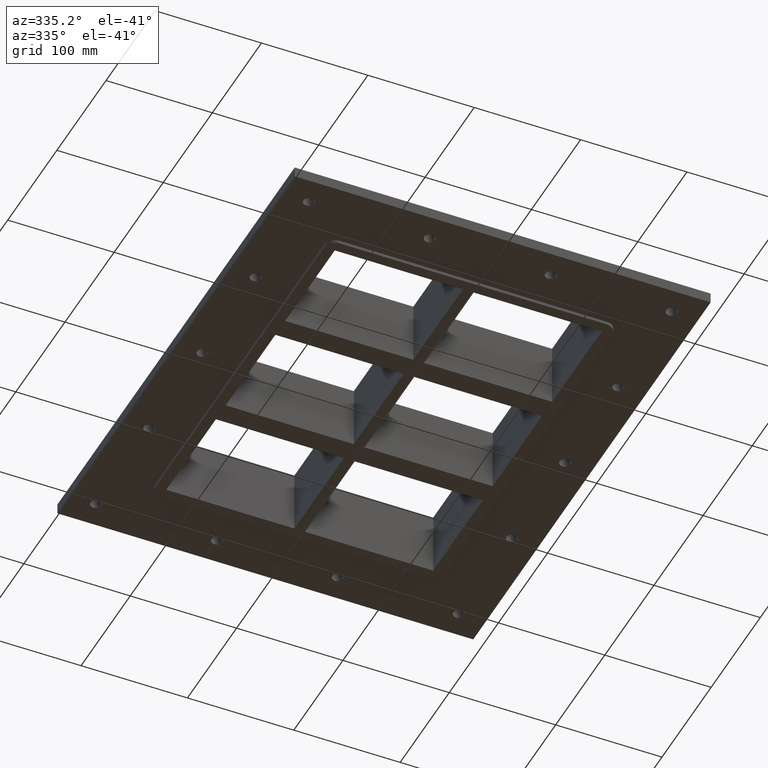
[diagram: clean part render]
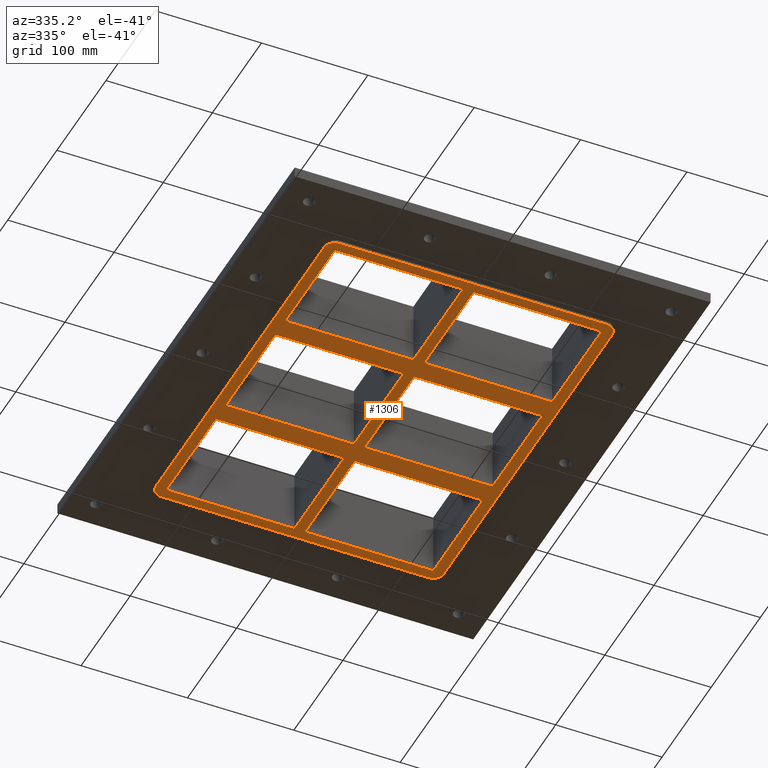
[diagram: same view with one face highlighted and labeled with its STEP entity id]
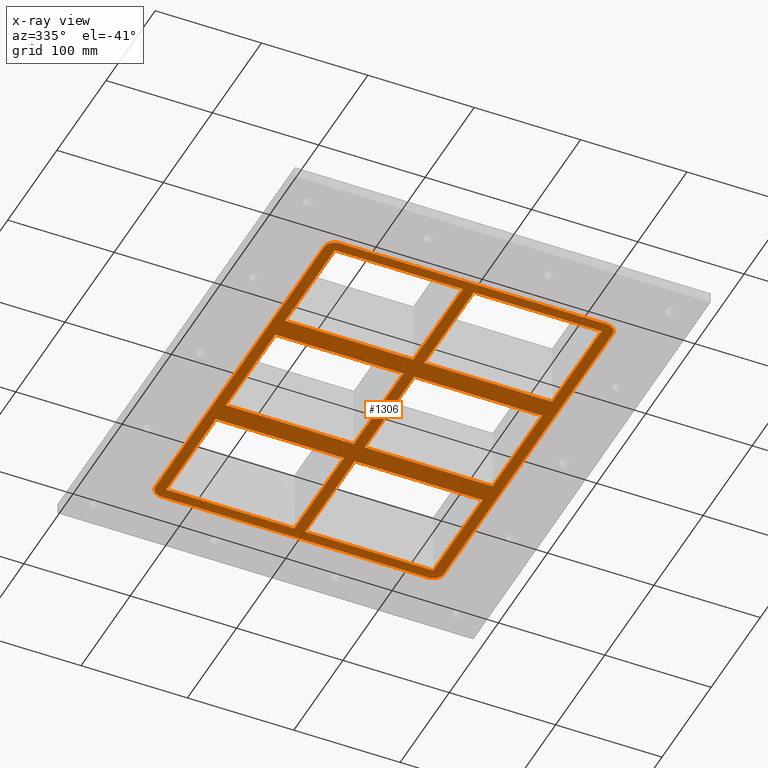
[diagram: x-ray of the same camera — body ghosted, the highlighted face saturated]
A machine part, auxiliary view. The second image highlights one B-rep face of the part: STEP entity #1306.
The next image is the same camera in x-ray: the body ghosted, the highlighted face saturated — about 0% of this face is hidden behind the body in this view.
In plain terms, the highlighted planar face has unit normal (0, 0, 1).
Its self-contained STEP definition (entity closure, byte-faithful):
#838=CARTESIAN_POINT('',(125.5,-181.50000000000003,-30.0));
#839=VERTEX_POINT('',#838);
#846=CARTESIAN_POINT('',(135.50000000000003,-171.50000000000003,-30.0));
#847=VERTEX_POINT('',#846);
#848=CARTESIAN_POINT('',(125.5,-171.50000000000003,-30.0));
#849=DIRECTION('',(0.0,0.0,1.0));
#850=DIRECTION('',(0.707106781186547,-0.707106781186547,0.0));
#851=AXIS2_PLACEMENT_3D('',#848,#849,#850);
#852=CIRCLE('',#851,9.999999999999998);
#853=EDGE_CURVE('',#839,#847,#852,.T.);
#902=CARTESIAN_POINT('',(-125.49999999999994,-181.50000000000003,-30.0));
#903=VERTEX_POINT('',#902);
#910=CARTESIAN_POINT('',(125.5,-181.50000000000003,-30.0));
#911=DIRECTION('',(-1.0,0.0,0.0));
#912=VECTOR('',#911,250.99999999999994);
#913=LINE('',#910,#912);
#914=EDGE_CURVE('',#839,#903,#913,.T.);
#950=CARTESIAN_POINT('',(-135.49999999999994,-171.50000000000006,-30.0));
#951=VERTEX_POINT('',#950);
#958=CARTESIAN_POINT('',(-125.49999999999994,-171.50000000000006,-30.0));
#959=DIRECTION('',(0.0,0.0,1.0));
#960=DIRECTION('',(-0.707106781186547,-0.707106781186547,0.0));
#961=AXIS2_PLACEMENT_3D('',#958,#959,#960);
#962=CIRCLE('',#961,9.999999999999998);
#963=EDGE_CURVE('',#951,#903,#962,.T.);
#1000=CARTESIAN_POINT('',(-135.50000000000009,171.50000000000006,-30.0));
#1001=VERTEX_POINT('',#1000);
#1008=CARTESIAN_POINT('',(-135.49999999999994,-171.50000000000006,-30.0));
#1009=DIRECTION('',(0.0,1.0,0.0));
#1010=VECTOR('',#1009,343.00000000000011);
#1011=LINE('',#1008,#1010);
#1012=EDGE_CURVE('',#951,#1001,#1011,.T.);
#1048=CARTESIAN_POINT('',(-125.50000000000009,181.50000000000006,-30.0));
#1049=VERTEX_POINT('',#1048);
#1056=CARTESIAN_POINT('',(-125.50000000000009,171.50000000000006,-30.0));
#1057=DIRECTION('',(0.0,0.0,1.0));
#1058=DIRECTION('',(-0.707106781186547,0.707106781186547,0.0));
#1059=AXIS2_PLACEMENT_3D('',#1056,#1057,#1058);
#1060=CIRCLE('',#1059,9.999999999999998);
#1061=EDGE_CURVE('',#1049,#1001,#1060,.T.);
#1067=CARTESIAN_POINT('',(-3.362190E-014,-6.724379E-015,-30.0));
#1068=DIRECTION('',(0.0,0.0,1.0));
#1069=DIRECTION('',(1.0,0.0,0.0));
#1070=AXIS2_PLACEMENT_3D('',#1067,#1068,#1069);
#1071=PLANE('',#1070);
#1072=ORIENTED_EDGE('',*,*,#853,.F.);
#1073=ORIENTED_EDGE('',*,*,#914,.T.);
#1074=ORIENTED_EDGE('',*,*,#963,.F.);
#1075=ORIENTED_EDGE('',*,*,#1012,.T.);
#1076=ORIENTED_EDGE('',*,*,#1061,.F.);
#1077=CARTESIAN_POINT('',(125.49999999999994,181.5,-30.0));
#1078=VERTEX_POINT('',#1077);
#1079=CARTESIAN_POINT('',(-125.50000000000006,181.50000000000006,-30.0));
#1080=DIRECTION('',(1.0,0.0,0.0));
#1081=VECTOR('',#1080,251.0);
#1082=LINE('',#1079,#1081);
#1083=EDGE_CURVE('',#1049,#1078,#1082,.T.);
#1084=ORIENTED_EDGE('',*,*,#1083,.T.);
#1085=CARTESIAN_POINT('',(135.49999999999994,171.49999999999994,-30.0));
#1086=VERTEX_POINT('',#1085);
#1087=CARTESIAN_POINT('',(125.49999999999994,171.5,-30.0));
#1088=DIRECTION('',(0.0,0.0,1.0));
#1089=DIRECTION('',(0.707106781186547,0.707106781186547,0.0));
#1090=AXIS2_PLACEMENT_3D('',#1087,#1088,#1089);
#1091=CIRCLE('',#1090,9.999999999999998);
#1092=EDGE_CURVE('',#1086,#1078,#1091,.T.);
#1093=ORIENTED_EDGE('',*,*,#1092,.F.);
#1094=CARTESIAN_POINT('',(135.49999999999994,171.49999999999997,-30.0));
#1095=DIRECTION('',(0.0,-1.0,0.0));
#1096=VECTOR('',#1095,343.0);
#1097=LINE('',#1094,#1096);
#1098=EDGE_CURVE('',#1086,#847,#1097,.T.);
#1099=ORIENTED_EDGE('',*,*,#1098,.T.);
#1100=EDGE_LOOP('',(#1072,#1073,#1074,#1075,#1076,#1084,#1093,#1099));
#1101=FACE_OUTER_BOUND('',#1100,.T.);
#1102=CARTESIAN_POINT('',(4.999999999999953,171.5,-30.0));
#1103=VERTEX_POINT('',#1102);
#1104=CARTESIAN_POINT('',(4.999999999999971,70.500000000000256,-30.0));
#1105=VERTEX_POINT('',#1104);
#1106=CARTESIAN_POINT('',(4.999999999999953,171.49999999999997,-30.0));
#1107=DIRECTION('',(0.0,-1.0,0.0));
#1108=VECTOR('',#1107,100.99999999999972);
#1109=LINE('',#1106,#1108);
#1110=EDGE_CURVE('',#1103,#1105,#1109,.T.);
#1111=ORIENTED_EDGE('',*,*,#1110,.T.);
#1112=CARTESIAN_POINT('',(125.49999999999997,70.499999999999972,-30.0));
#1113=VERTEX_POINT('',#1112);
#1114=CARTESIAN_POINT('',(4.999999999999979,70.500000000000256,-30.0));
#1115=DIRECTION('',(1.0,0.0,0.0));
#1116=VECTOR('',#1115,120.5);
#1117=LINE('',#1114,#1116);
#1118=EDGE_CURVE('',#1105,#1113,#1117,.T.);
#1119=ORIENTED_EDGE('',*,*,#1118,.T.);
#1120=CARTESIAN_POINT('',(125.49999999999996,171.5,-30.0));
#1121=VERTEX_POINT('',#1120);
#1122=CARTESIAN_POINT('',(125.49999999999997,70.499999999999972,-30.0));
#1123=DIRECTION('',(0.0,1.0,0.0));
#1124=VECTOR('',#1123,101.00000000000003);
#1125=LINE('',#1122,#1124);
#1126=EDGE_CURVE('',#1113,#1121,#1125,.T.);
#1127=ORIENTED_EDGE('',*,*,#1126,.T.);
#1128=CARTESIAN_POINT('',(125.49999999999994,171.50000000000003,-30.0));
#1129=DIRECTION('',(-1.0,0.0,0.0));
#1130=VECTOR('',#1129,120.49999999999999);
#1131=LINE('',#1128,#1130);
#1132=EDGE_CURVE('',#1121,#1103,#1131,.T.);
#1133=ORIENTED_EDGE('',*,*,#1132,.T.);
#1134=EDGE_LOOP('',(#1111,#1119,#1127,#1133));
#1135=FACE_BOUND('',#1134,.T.);
#1136=CARTESIAN_POINT('',(4.999999999999989,50.499999999999957,-30.0));
#1137=VERTEX_POINT('',#1136);
#1138=CARTESIAN_POINT('',(5.000000000000005,-50.499999999999758,-30.0));
#1139=VERTEX_POINT('',#1138);
#1140=CARTESIAN_POINT('',(4.999999999999988,50.499999999999943,-30.0));
#1141=DIRECTION('',(0.0,-1.0,0.0));
#1142=VECTOR('',#1141,100.9999999999997);
#1143=LINE('',#1140,#1142);
#1144=EDGE_CURVE('',#1137,#1139,#1143,.T.);
#1145=ORIENTED_EDGE('',*,*,#1144,.T.);
#1146=CARTESIAN_POINT('',(125.5,-50.500000000000043,-30.0));
#1147=VERTEX_POINT('',#1146);
#1148=CARTESIAN_POINT('',(5.000000000000007,-50.499999999999766,-30.0));
#1149=DIRECTION('',(1.0,0.0,0.0));
#1150=VECTOR('',#1149,120.5);
#1151=LINE('',#1148,#1150);
#1152=EDGE_CURVE('',#1139,#1147,#1151,.T.);
#1153=ORIENTED_EDGE('',*,*,#1152,.T.);
#1154=CARTESIAN_POINT('',(125.49999999999999,50.499999999999972,-30.0));
#1155=VERTEX_POINT('',#1154);
#1156=CARTESIAN_POINT('',(125.5,-50.500000000000043,-30.0));
#1157=DIRECTION('',(0.0,1.0,0.0));
#1158=VECTOR('',#1157,101.00000000000001);
#1159=LINE('',#1156,#1158);
#1160=EDGE_CURVE('',#1147,#1155,#1159,.T.);
#1161=ORIENTED_EDGE('',*,*,#1160,.T.);
#1162=CARTESIAN_POINT('',(125.49999999999997,50.499999999999979,-30.0));
#1163=DIRECTION('',(-1.0,0.0,0.0));
#1164=VECTOR('',#1163,120.49999999999999);
#1165=LINE('',#1162,#1164);
#1166=EDGE_CURVE('',#1155,#1137,#1165,.T.);
#1167=ORIENTED_EDGE('',*,*,#1166,.T.);
#1168=EDGE_LOOP('',(#1145,#1153,#1161,#1167));
#1169=FACE_BOUND('',#1168,.T.);
#1170=CARTESIAN_POINT('',(5.000000000000041,-70.500000000000043,-30.0));
#1171=VERTEX_POINT('',#1170);
#1172=CARTESIAN_POINT('',(5.000000000000059,-171.49999999999977,-30.0));
#1173=VERTEX_POINT('',#1172);
#1174=CARTESIAN_POINT('',(5.000000000000042,-70.500000000000043,-30.0));
#1175=DIRECTION('',(0.0,-1.0,0.0));
#1176=VECTOR('',#1175,100.99999999999973);
#1177=LINE('',#1174,#1176);
#1178=EDGE_CURVE('',#1171,#1173,#1177,.T.);
#1179=ORIENTED_EDGE('',*,*,#1178,.T.);
#1180=CARTESIAN_POINT('',(125.50000000000006,-171.50000000000006,-30.0));
#1181=VERTEX_POINT('',#1180);
#1182=CARTESIAN_POINT('',(5.000000000000064,-171.49999999999977,-30.0));
#1183=DIRECTION('',(1.0,0.0,0.0));
#1184=VECTOR('',#1183,120.5);
#1185=LINE('',#1182,#1184);
#1186=EDGE_CURVE('',#1173,#1181,#1185,.T.);
#1187=ORIENTED_EDGE('',*,*,#1186,.T.);
#1188=CARTESIAN_POINT('',(125.50000000000004,-70.500000000000043,-30.0));
#1189=VERTEX_POINT('',#1188);
#1190=CARTESIAN_POINT('',(125.50000000000007,-171.50000000000006,-30.0));
#1191=DIRECTION('',(0.0,1.0,0.0));
#1192=VECTOR('',#1191,101.00000000000001);
#1193=LINE('',#1190,#1192);
#1194=EDGE_CURVE('',#1181,#1189,#1193,.T.);
#1195=ORIENTED_EDGE('',*,*,#1194,.T.);
#1196=CARTESIAN_POINT('',(125.50000000000006,-70.500000000000028,-30.0));
#1197=DIRECTION('',(-1.0,0.0,0.0));
#1198=VECTOR('',#1197,120.50000000000001);
#1199=LINE('',#1196,#1198);
#1200=EDGE_CURVE('',#1189,#1171,#1199,.T.);
#1201=ORIENTED_EDGE('',*,*,#1200,.T.);
#1202=EDGE_LOOP('',(#1179,#1187,#1195,#1201));
#1203=FACE_BOUND('',#1202,.T.);
#1204=CARTESIAN_POINT('',(-125.50000000000009,171.5,-30.0));
#1205=VERTEX_POINT('',#1204);
#1206=CARTESIAN_POINT('',(-125.50000000000006,70.500000000000256,-30.0));
#1207=VERTEX_POINT('',#1206);
#1208=CARTESIAN_POINT('',(-125.50000000000007,171.5,-30.0));
#1209=DIRECTION('',(0.0,-1.0,0.0));
#1210=VECTOR('',#1209,100.99999999999974);
#1211=LINE('',#1208,#1210);
#1212=EDGE_CURVE('',#1205,#1207,#1211,.T.);
#1213=ORIENTED_EDGE('',*,*,#1212,.T.);
#1214=CARTESIAN_POINT('',(-5.000000000000041,70.499999999999972,-30.0));
#1215=VERTEX_POINT('',#1214);
#1216=CARTESIAN_POINT('',(-125.50000000000007,70.500000000000256,-30.0));
#1217=DIRECTION('',(1.0,0.0,0.0));
#1218=VECTOR('',#1217,120.50000000000003);
#1219=LINE('',#1216,#1218);
#1220=EDGE_CURVE('',#1207,#1215,#1219,.T.);
#1221=ORIENTED_EDGE('',*,*,#1220,.T.);
#1222=CARTESIAN_POINT('',(-5.00000000000006,171.5,-30.0));
#1223=VERTEX_POINT('',#1222);
#1224=CARTESIAN_POINT('',(-5.000000000000042,70.499999999999972,-30.0));
#1225=DIRECTION('',(0.0,1.0,0.0));
#1226=VECTOR('',#1225,101.00000000000003);
#1227=LINE('',#1224,#1226);
#1228=EDGE_CURVE('',#1215,#1223,#1227,.T.);
#1229=ORIENTED_EDGE('',*,*,#1228,.T.);
#1230=CARTESIAN_POINT('',(-5.000000000000064,171.5,-30.0));
#1231=DIRECTION('',(-1.0,0.0,0.0));
#1232=VECTOR('',#1231,120.50000000000003);
#1233=LINE('',#1230,#1232);
#1234=EDGE_CURVE('',#1223,#1205,#1233,.T.);
#1235=ORIENTED_EDGE('',*,*,#1234,.T.);
#1236=EDGE_LOOP('',(#1213,#1221,#1229,#1235));
#1237=FACE_BOUND('',#1236,.T.);
#1238=CARTESIAN_POINT('',(-125.50000000000003,50.499999999999957,-30.0));
#1239=VERTEX_POINT('',#1238);
#1240=CARTESIAN_POINT('',(-125.5,-50.499999999999758,-30.0));
#1241=VERTEX_POINT('',#1240);
#1242=CARTESIAN_POINT('',(-125.50000000000001,50.499999999999964,-30.0));
#1243=DIRECTION('',(0.0,-1.0,0.0));
#1244=VECTOR('',#1243,100.99999999999972);
#1245=LINE('',#1242,#1244);
#1246=EDGE_CURVE('',#1239,#1241,#1245,.T.);
#1247=ORIENTED_EDGE('',*,*,#1246,.T.);
#1248=CARTESIAN_POINT('',(-4.999999999999994,-50.500000000000043,-30.0));
#1249=VERTEX_POINT('',#1248);
#1250=CARTESIAN_POINT('',(-125.50000000000001,-50.499999999999751,-30.0));
#1251=DIRECTION('',(1.0,0.0,0.0));
#1252=VECTOR('',#1251,120.50000000000001);
#1253=LINE('',#1250,#1252);
#1254=EDGE_CURVE('',#1241,#1249,#1253,.T.);
#1255=ORIENTED_EDGE('',*,*,#1254,.T.);
#1256=CARTESIAN_POINT('',(-5.000000000000012,50.499999999999972,-30.0));
#1257=VERTEX_POINT('',#1256);
#1258=CARTESIAN_POINT('',(-4.999999999999995,-50.500000000000043,-30.0));
#1259=DIRECTION('',(0.0,1.0,0.0));
#1260=VECTOR('',#1259,101.00000000000001);
#1261=LINE('',#1258,#1260);
#1262=EDGE_CURVE('',#1249,#1257,#1261,.T.);
#1263=ORIENTED_EDGE('',*,*,#1262,.T.);
#1264=CARTESIAN_POINT('',(-5.000000000000007,50.499999999999972,-30.0));
#1265=DIRECTION('',(-1.0,0.0,0.0));
#1266=VECTOR('',#1265,120.50000000000003);
#1267=LINE('',#1264,#1266);
#1268=EDGE_CURVE('',#1257,#1239,#1267,.T.);
#1269=ORIENTED_EDGE('',*,*,#1268,.T.);
#1270=EDGE_LOOP('',(#1247,#1255,#1263,#1269));
#1271=FACE_BOUND('',#1270,.T.);
#1272=CARTESIAN_POINT('',(-4.999999999999947,-171.50000000000006,-30.0));
#1273=VERTEX_POINT('',#1272);
#1274=CARTESIAN_POINT('',(-4.999999999999965,-70.500000000000043,-30.0));
#1275=VERTEX_POINT('',#1274);
#1276=CARTESIAN_POINT('',(-4.999999999999947,-171.50000000000006,-30.0));
#1277=DIRECTION('',(0.0,1.0,0.0));
#1278=VECTOR('',#1277,101.00000000000001);
#1279=LINE('',#1276,#1278);
#1280=EDGE_CURVE('',#1273,#1275,#1279,.T.);
#1281=ORIENTED_EDGE('',*,*,#1280,.T.);
#1282=CARTESIAN_POINT('',(-125.49999999999997,-70.500000000000057,-30.0));
#1283=VERTEX_POINT('',#1282);
#1284=CARTESIAN_POINT('',(-4.999999999999965,-70.500000000000043,-30.0));
#1285=DIRECTION('',(-1.0,0.0,0.0));
#1286=VECTOR('',#1285,120.5);
#1287=LINE('',#1284,#1286);
#1288=EDGE_CURVE('',#1275,#1283,#1287,.T.);
#1289=ORIENTED_EDGE('',*,*,#1288,.T.);
#1290=CARTESIAN_POINT('',(-125.49999999999996,-171.49999999999977,-30.0));
#1291=VERTEX_POINT('',#1290);
#1292=CARTESIAN_POINT('',(-125.49999999999997,-70.500000000000057,-30.0));
#1293=DIRECTION('',(0.0,-1.0,0.0));
#1294=VECTOR('',#1293,100.99999999999972);
#1295=LINE('',#1292,#1294);
#1296=EDGE_CURVE('',#1283,#1291,#1295,.T.);
#1297=ORIENTED_EDGE('',*,*,#1296,.T.);
#1298=CARTESIAN_POINT('',(-125.49999999999996,-171.49999999999977,-30.0));
#1299=DIRECTION('',(1.0,0.0,0.0));
#1300=VECTOR('',#1299,120.50000000000001);
#1301=LINE('',#1298,#1300);
#1302=EDGE_CURVE('',#1291,#1273,#1301,.T.);
#1303=ORIENTED_EDGE('',*,*,#1302,.T.);
#1304=EDGE_LOOP('',(#1281,#1289,#1297,#1303));
#1305=FACE_BOUND('',#1304,.T.);
#1306=ADVANCED_FACE('',(#1101,#1135,#1169,#1203,#1237,#1271,#1305),#1071,.F.);